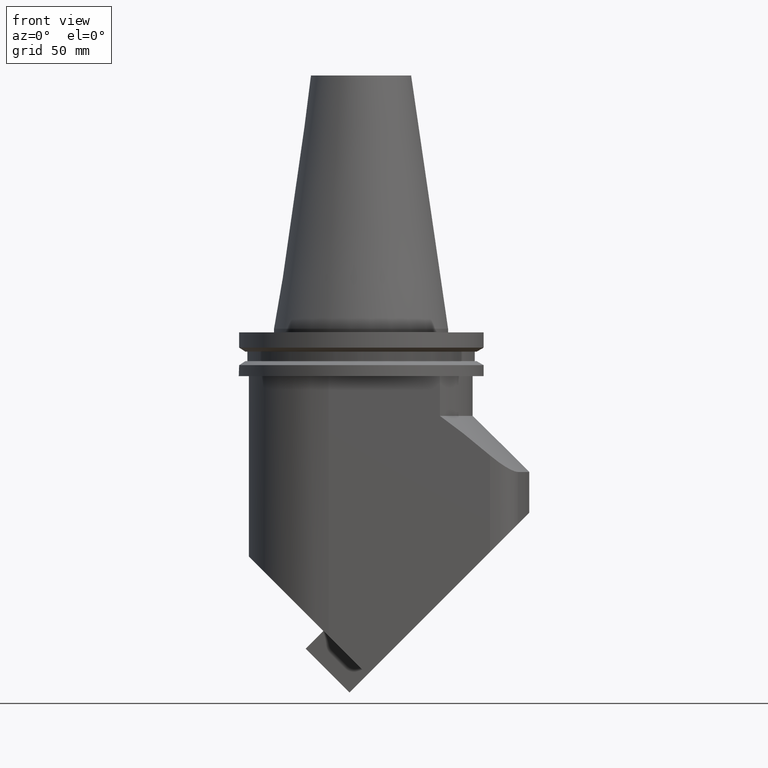
[diagram: clean part render]
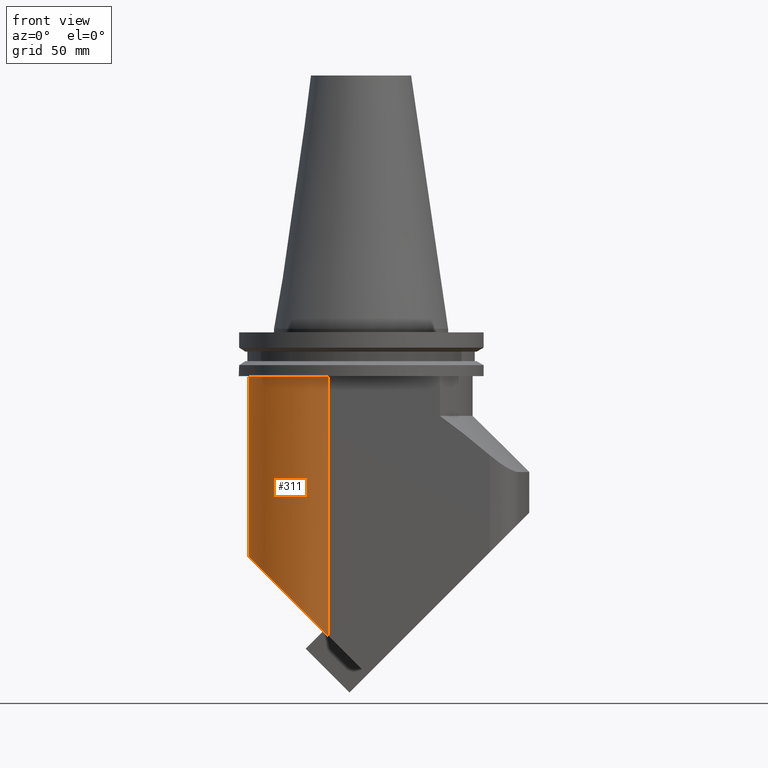
[diagram: same view with one face highlighted and labeled with its STEP entity id]
A machine part, front view. The second image highlights one B-rep face of the part: STEP entity #311.
In plain terms, the highlighted cylindrical surface (partial cylindrical patch) has radius 32 mm, axis along (-0, 0, 1).
Its self-contained STEP definition (entity closure, byte-faithful):
#164=EDGE_CURVE('Unnamed[1]',#404,#433,#434,.T.);
#166=EDGE_CURVE('Unnamed[1]',#436,#433,#437,.T.);
#173=EDGE_CURVE('Unnamed[1]',#408,#436,#447,.T.);
#311=ADVANCED_FACE('Unnamed[1]',(#630),#631,.T.);
#326=EDGE_CURVE('Unnamed[1]',#439,#404,#651,.T.);
#342=EDGE_CURVE('Unnamed[1]',#439,#408,#670,.T.);
#404=VERTEX_POINT('',#735);
#408=VERTEX_POINT('',#741);
#433=VERTEX_POINT('',#783);
#434=LINE('',#784,#785);
#436=VERTEX_POINT('',#788);
#437=CIRCLE('',#789,32.0);
#439=VERTEX_POINT('',#792);
#447=LINE('',#803,#804);
#630=FACE_OUTER_BOUND('',#1169,.T.);
#631=CYLINDRICAL_SURFACE('',#1170,32.0);
#651=ELLIPSE('',#1196,45.2548340026293,32.0);
#670=LINE('',#1225,#1226);
#735=CARTESIAN_POINT('',(-13.0000000000001,-32.0,-123.457864382269));
#741=CARTESIAN_POINT('',(-45.0000000000006,2.08978133942906E-013,-35.0000000000011));
#783=CARTESIAN_POINT('',(-13.0000000000001,-31.9999999999999,-19.05));
#784=CARTESIAN_POINT('',(-13.0000000000001,-32.0,-306.209870642012));
#785=VECTOR('',#1312,1.0);
#788=CARTESIAN_POINT('',(-44.999999999998,7.25974835802381E-014,-19.05));
#789=AXIS2_PLACEMENT_3D('',#1313,#1314,#1315);
#792=CARTESIAN_POINT('',(-44.9999999999966,5.65197079421115E-014,-91.4578643728107));
#803=CARTESIAN_POINT('',(-45.0000000000006,1.48757445364433E-013,-306.209870642012));
#804=VECTOR('',#1323,1.0);
#1169=EDGE_LOOP('',(#1523,#1524,#1525,#1526,#1527));
#1170=AXIS2_PLACEMENT_3D('',#1528,#1529,#1530);
#1196=AXIS2_PLACEMENT_3D('',#1560,#1561,#1562);
#1225=CARTESIAN_POINT('',(-44.999999999998,8.83518355320941E-015,-306.209870642012));
#1226=VECTOR('',#1584,1.0);
#1312=DIRECTION('',(-1.22464679914735E-016,2.22044604925031E-016,1.0));
#1313=CARTESIAN_POINT('',(-13.0000000000001,5.8386628865037E-014,-19.05));
#1314=DIRECTION('',(1.22464679914735E-016,3.83475850529282E-017,1.0));
#1315=DIRECTION('',(5.66553889764798E-016,1.0,-3.83475850529283E-017));
#1323=DIRECTION('',(-1.22464679914735E-016,2.22044604925031E-016,1.0));
#1523=ORIENTED_EDGE('',*,*,#326,.T.);
#1524=ORIENTED_EDGE('',*,*,#164,.T.);
#1525=ORIENTED_EDGE('',*,*,#166,.F.);
#1526=ORIENTED_EDGE('',*,*,#173,.F.);
#1527=ORIENTED_EDGE('',*,*,#342,.F.);
#1528=CARTESIAN_POINT('',(-13.0,-5.37567116199168E-015,-306.209870642012));
#1529=DIRECTION('',(-1.22464679914735E-016,2.22044604925031E-016,1.0));
#1530=DIRECTION('',(5.66553889764798E-016,1.0,-2.22044604925031E-016));
#1560=CARTESIAN_POINT('',(-13.0000000000001,3.52034258672099E-014,-123.457864382269));
#1561=DIRECTION('',(0.707106781291082,-1.57009245938011E-016,0.707106781082013));
#1562=DIRECTION('',(-0.707106781082013,5.57623343192669E-016,0.707106781291082));
#1584=DIRECTION('',(-1.22464679914735E-016,2.22044604925031E-016,1.0));